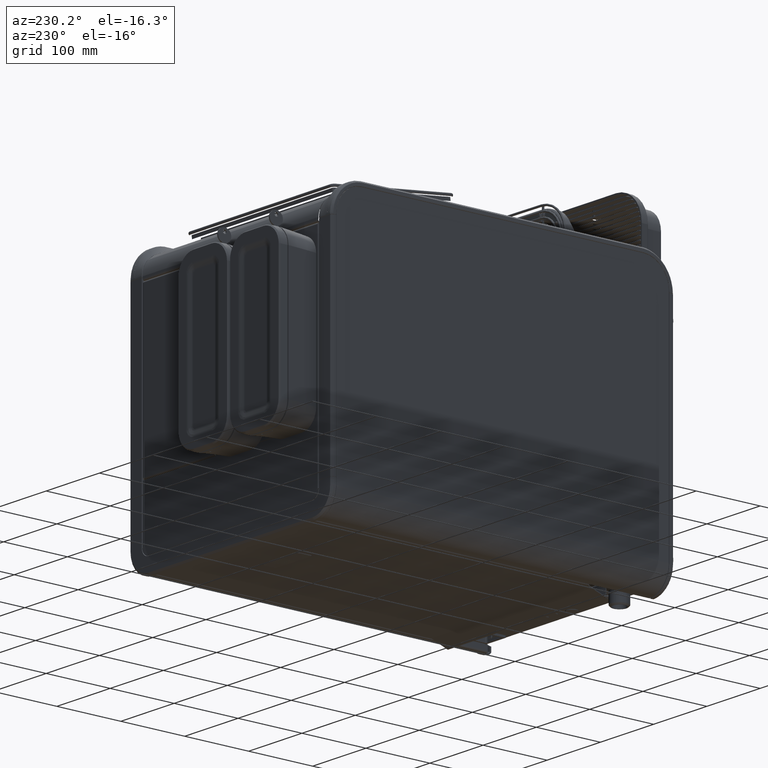
[diagram: clean part render]
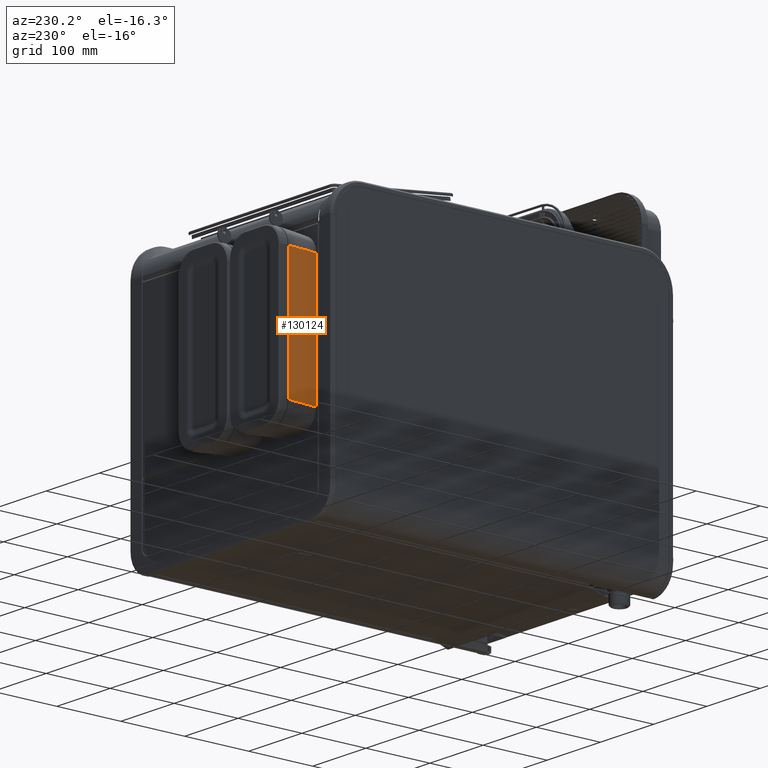
[diagram: same view with one face highlighted and labeled with its STEP entity id]
A machine part, auxiliary view. The second image highlights one B-rep face of the part: STEP entity #130124.
In plain terms, the highlighted cylindrical surface (partial cylindrical patch) has radius 700 mm, axis along (0, -0, -1).
Its self-contained STEP definition (entity closure, byte-faithful):
#8507=CYLINDRICAL_SURFACE('',#137111,700.);
#16358=CIRCLE('',#137110,700.);
#16359=CIRCLE('',#137112,700.);
#23339=FACE_OUTER_BOUND('',#29440,.T.);
#29440=EDGE_LOOP('',(#97759,#97760,#97761,#97762));
#37333=LINE('',#191555,#47358);
#37352=LINE('',#192083,#47377);
#47358=VECTOR('',#151784,10.);
#47377=VECTOR('',#151841,10.);
#57444=VERTEX_POINT('',#191549);
#57445=VERTEX_POINT('',#191554);
#57490=VERTEX_POINT('',#192075);
#57491=VERTEX_POINT('',#192082);
#74074=EDGE_CURVE('',#57444,#57445,#37333,.T.);
#74129=EDGE_CURVE('',#57444,#57490,#16358,.T.);
#74130=EDGE_CURVE('',#57490,#57491,#37352,.T.);
#74131=EDGE_CURVE('',#57445,#57491,#16359,.T.);
#97759=ORIENTED_EDGE('',*,*,#74129,.T.);
#97760=ORIENTED_EDGE('',*,*,#74130,.T.);
#97761=ORIENTED_EDGE('',*,*,#74131,.F.);
#97762=ORIENTED_EDGE('',*,*,#74074,.F.);
#130124=ADVANCED_FACE('',(#23339),#8507,.T.);
#137110=AXIS2_PLACEMENT_3D('',#192080,#151837,#151838);
#137111=AXIS2_PLACEMENT_3D('',#192081,#151839,#151840);
#137112=AXIS2_PLACEMENT_3D('',#192084,#151842,#151843);
#151784=DIRECTION('',(-1.26327779605318E-14,3.43221978615773E-12,1.));
#151837=DIRECTION('center_axis',(-1.26327779605318E-14,3.43221978615773E-12,
1.));
#151838=DIRECTION('ref_axis',(0.992436068244463,0.122762577553063,-4.08810923187191E-13));
#151839=DIRECTION('center_axis',(1.26327779605318E-14,-3.43221978615773E-12,
-1.));
#151840=DIRECTION('ref_axis',(0.992436068244463,0.122762577553063,-4.08810923187191E-13));
#151841=DIRECTION('',(-1.26327779605318E-14,3.43221978615773E-12,1.));
#151842=DIRECTION('center_axis',(-1.26327779605318E-14,3.43221978615773E-12,
1.));
#151843=DIRECTION('ref_axis',(0.992436068244463,0.122762577553063,-4.08810923187191E-13));
#191549=CARTESIAN_POINT('',(-165.199999999989,575.399999886845,-69.8000000003772));
#191554=CARTESIAN_POINT('',(-165.199999999992,575.399999887508,123.199999999623));
#191555=CARTESIAN_POINT('',(-165.19999999999,575.399999887176,26.6999999996228));
#192075=CARTESIAN_POINT('',(-160.99999999999,528.599999886845,-69.8000000002166));
#192080=CARTESIAN_POINT('Origin',(533.705247771134,614.533804173989,-69.8000000005027));
#192081=CARTESIAN_POINT('Origin',(533.705247771133,614.533804174321,26.6999999994973));
#192082=CARTESIAN_POINT('',(-160.999999999992,528.599999887508,123.199999999783));
#192083=CARTESIAN_POINT('',(-160.999999999991,528.599999887176,26.6999999997834));
#192084=CARTESIAN_POINT('Origin',(533.705247771132,614.533804174652,123.199999999497));